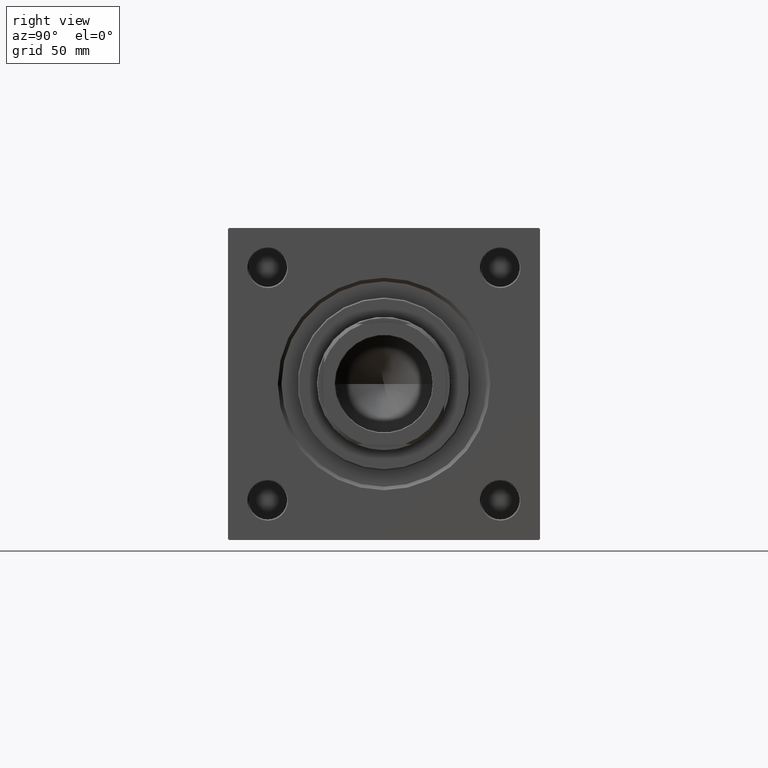
[diagram: clean part render]
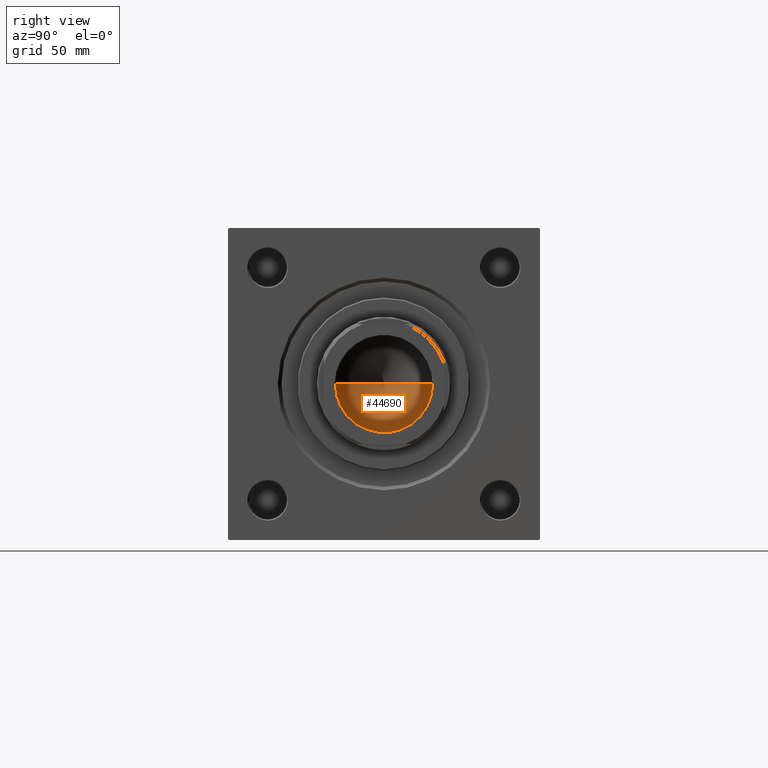
[diagram: same view with one face highlighted and labeled with its STEP entity id]
A machine part, right view. The second image highlights one B-rep face of the part: STEP entity #44690.
In plain terms, the highlighted conical surface has half-angle 59 deg.
Its self-contained STEP definition (entity closure, byte-faithful):
#1296 = VECTOR ( 'NONE', #38733, 1000.000000000000000 ) ;
#2079 = CARTESIAN_POINT ( 'NONE',  ( 0.000000000000000000, 0.000000000000000000, 117.0000000000000142 ) ) ;
#3919 = EDGE_LOOP ( 'NONE', ( #12891, #16700, #38320 ) ) ;
#4242 = CARTESIAN_POINT ( 'NONE',  ( 20.24999999999998934, 0.000000000000000000, 117.0000000000000142 ) ) ;
#4854 = EDGE_CURVE ( 'NONE', #34000, #41656, #45204, .T. ) ;
#6419 = FACE_OUTER_BOUND ( 'NONE', #3919, .T. ) ;
#6425 = CARTESIAN_POINT ( 'NONE',  ( 0.000000000000000000, 0.000000000000000000, 117.0000000000000142 ) ) ;
#11640 = CIRCLE ( 'NONE', #40329, 20.24999999999998934 ) ;
#11950 = VERTEX_POINT ( 'NONE', #45929 ) ;
#12891 = ORIENTED_EDGE ( 'NONE', *, *, #30438, .F. ) ;
#14729 = CARTESIAN_POINT ( 'NONE',  ( -1.584115414415908206E-14, 0.000000000000000000, 104.8325724646918928 ) ) ;
#15635 = CARTESIAN_POINT ( 'NONE',  ( -20.24999999999998934, 2.479909768273389117E-15, 117.0000000000000142 ) ) ;
#16700 = ORIENTED_EDGE ( 'NONE', *, *, #4854, .T. ) ;
#17310 = EDGE_CURVE ( 'NONE', #41656, #11950, #11640, .T. ) ;
#17737 = DIRECTION ( 'NONE',  ( -0.000000000000000000, -0.000000000000000000, 1.000000000000000000 ) ) ;
#18253 = CARTESIAN_POINT ( 'NONE',  ( 20.24999999999998934, 0.000000000000000000, 117.0000000000000142 ) ) ;
#23774 = AXIS2_PLACEMENT_3D ( 'NONE', #2079, #17737, #44933 ) ;
#27859 = CONICAL_SURFACE ( 'NONE', #23774, 20.24999999999998934, 1.029744258676652979 ) ;
#30322 = VECTOR ( 'NONE', #33882, 1000.000000000000000 ) ;
#30438 = EDGE_CURVE ( 'NONE', #34000, #11950, #50271, .T. ) ;
#33882 = DIRECTION ( 'NONE',  ( 0.8571673007021115565, 0.000000000000000000, 0.5150380749100554878 ) ) ;
#34000 = VERTEX_POINT ( 'NONE', #14729 ) ;
#37735 = DIRECTION ( 'NONE',  ( 1.000000000000000000, 0.000000000000000000, 0.000000000000000000 ) ) ;
#38320 = ORIENTED_EDGE ( 'NONE', *, *, #17310, .T. ) ;
#38733 = DIRECTION ( 'NONE',  ( -0.8571673007021115565, 1.049727191138617710E-16, 0.5150380749100554878 ) ) ;
#40329 = AXIS2_PLACEMENT_3D ( 'NONE', #6425, #41339, #37735 ) ;
#41339 = DIRECTION ( 'NONE',  ( -0.000000000000000000, -0.000000000000000000, 1.000000000000000000 ) ) ;
#41656 = VERTEX_POINT ( 'NONE', #4242 ) ;
#44690 = ADVANCED_FACE ( 'NONE', ( #6419 ), #27859, .F. ) ;
#44933 = DIRECTION ( 'NONE',  ( 1.000000000000000000, 0.000000000000000000, 0.000000000000000000 ) ) ;
#45204 = LINE ( 'NONE', #18253, #30322 ) ;
#45929 = CARTESIAN_POINT ( 'NONE',  ( -20.24999999999998934, 2.479909768273389117E-15, 117.0000000000000142 ) ) ;
#50271 = LINE ( 'NONE', #15635, #1296 ) ;